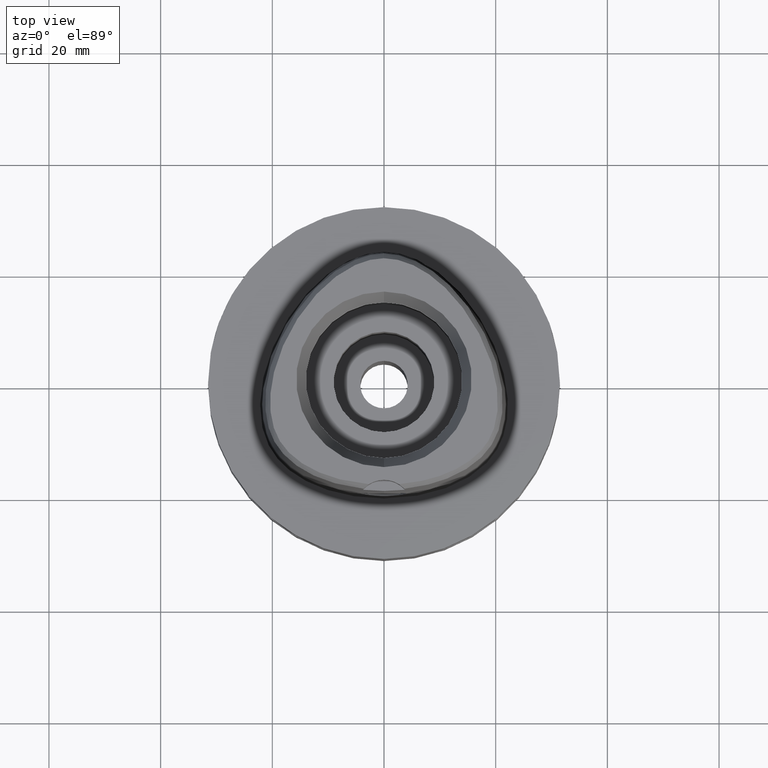
[diagram: clean part render]
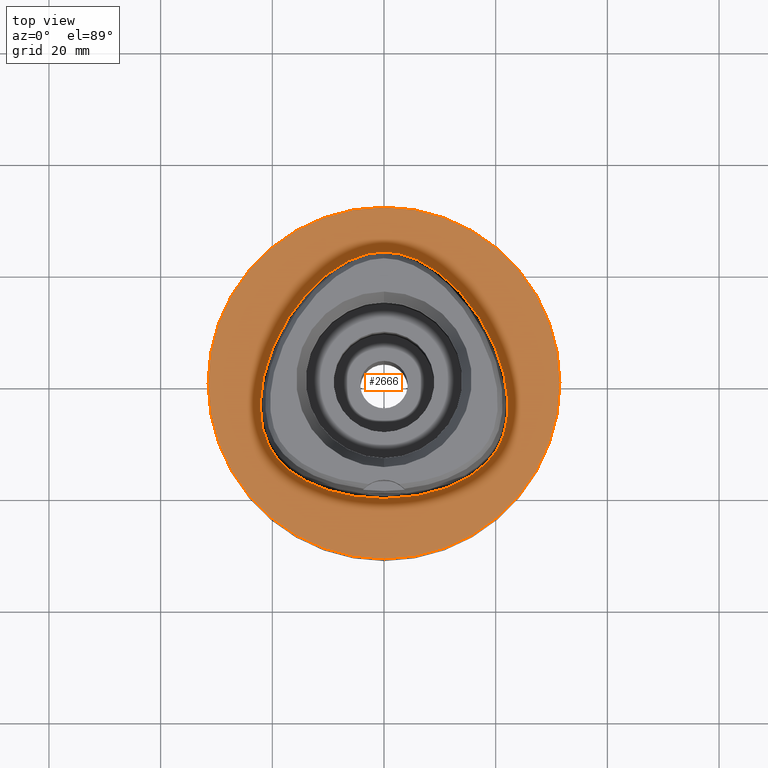
[diagram: same view with one face highlighted and labeled with its STEP entity id]
A machine part, top view. The second image highlights one B-rep face of the part: STEP entity #2666.
In plain terms, the highlighted planar face has unit normal (0, 0, -1).
Its self-contained STEP definition (entity closure, byte-faithful):
#301=CARTESIAN_POINT('',(0.E0,0.E0,0.E0));
#302=DIRECTION('',(0.E0,0.E0,-1.E0));
#303=DIRECTION('',(0.E0,-1.E0,0.E0));
#304=AXIS2_PLACEMENT_3D('',#301,#302,#303);
#309=CARTESIAN_POINT('',(0.E0,0.E0,0.E0));
#310=DIRECTION('',(0.E0,0.E0,-1.E0));
#311=DIRECTION('',(0.E0,1.E0,0.E0));
#312=AXIS2_PLACEMENT_3D('',#309,#310,#311);
#317=CARTESIAN_POINT('',(-1.592319701799E-11,-2.0675E1,1.603532121900E-13));
#318=CARTESIAN_POINT('',(8.668873742777E-1,-2.0675E1,1.603532121900E-13));
#319=CARTESIAN_POINT('',(2.574152259538E0,-2.061244071405E1,
-7.442018476992E-14));
#320=CARTESIAN_POINT('',(5.087455013477E0,-2.033690267620E1,
1.994082840967E-14));
#321=CARTESIAN_POINT('',(7.457378566242E0,-1.989743062754E1,0.E0));
#322=CARTESIAN_POINT('',(9.642522391508E0,-1.931995590345E1,0.E0));
#323=CARTESIAN_POINT('',(1.161491559429E1,-1.863265432641E1,0.E0));
#324=CARTESIAN_POINT('',(1.336672087832E1,-1.786238991750E1,0.E0));
#325=CARTESIAN_POINT('',(1.490398571914E1,-1.703145184235E1,0.E0));
#326=CARTESIAN_POINT('',(1.624050824088E1,-1.615719865621E1,0.E0));
#327=CARTESIAN_POINT('',(1.739430141447E1,-1.525155224486E1,0.E0));
#328=CARTESIAN_POINT('',(1.838387211282E1,-1.432230317713E1,0.E0));
#329=CARTESIAN_POINT('',(1.922788660157E1,-1.337127342318E1,0.E0));
#330=CARTESIAN_POINT('',(1.993663061937E1,-1.240622936985E1,0.E0));
#331=CARTESIAN_POINT('',(2.053360556137E1,-1.140958093014E1,0.E0));
#332=CARTESIAN_POINT('',(2.104227218910E1,-1.034212302010E1,0.E0));
#333=CARTESIAN_POINT('',(2.147146382919E1,-9.173402383785E0,0.E0));
#334=CARTESIAN_POINT('',(2.181286014328E1,-7.892124359501E0,0.E0));
#335=CARTESIAN_POINT('',(2.205603968422E1,-6.484933346756E0,0.E0));
#336=CARTESIAN_POINT('',(2.218639247745E1,-4.938570271174E0,0.E0));
#337=CARTESIAN_POINT('',(2.218557963621E1,-3.242642858041E0,0.E0));
#338=CARTESIAN_POINT('',(2.203226383610E1,-1.390957672398E0,0.E0));
#339=CARTESIAN_POINT('',(2.170398115361E1,6.132663305827E-1,0.E0));
#340=CARTESIAN_POINT('',(2.117984925178E1,2.755704147971E0,0.E0));
#341=CARTESIAN_POINT('',(2.044565882278E1,5.004033268702E0,0.E0));
#342=CARTESIAN_POINT('',(1.949801502885E1,7.310178658560E0,0.E0));
#343=CARTESIAN_POINT('',(1.834998330199E1,9.609039541637E0,0.E0));
#344=CARTESIAN_POINT('',(1.702876166180E1,1.183322818332E1,0.E0));
#345=CARTESIAN_POINT('',(1.557016828976E1,1.392494380147E1,0.E0));
#346=CARTESIAN_POINT('',(1.402234919916E1,1.582933644097E1,0.E0));
#347=CARTESIAN_POINT('',(1.243347396914E1,1.751057958156E1,0.E0));
#348=CARTESIAN_POINT('',(1.084483708065E1,1.895347168572E1,0.E0));
#349=CARTESIAN_POINT('',(9.286681097475E0,2.016051947713E1,0.E0));
#350=CARTESIAN_POINT('',(7.779196835196E0,2.114512601369E1,0.E0));
#351=CARTESIAN_POINT('',(6.332670487596E0,2.192724325982E1,0.E0));
#352=CARTESIAN_POINT('',(4.950443275475E0,2.252842718755E1,0.E0));
#353=CARTESIAN_POINT('',(3.631167033998E0,2.296923938972E1,0.E0));
#354=CARTESIAN_POINT('',(2.369469444584E0,2.326779768316E1,1.957266171852E-14));
#355=CARTESIAN_POINT('',(1.160536399010E0,2.343866167544E1,
-7.304616797287E-14));
#356=CARTESIAN_POINT('',(3.818615545930E-1,2.347499999998E1,
1.573926174577E-13));
#357=CARTESIAN_POINT('',(7.179858813188E-11,2.347499999998E1,
1.573926174577E-13));
#362=CARTESIAN_POINT('',(7.179858813188E-11,2.347499999998E1,
1.573926174577E-13));
#363=CARTESIAN_POINT('',(-3.819532290495E-1,2.347499999999E1,
1.573926174577E-13));
#364=CARTESIAN_POINT('',(-1.160780447523E0,2.343864730641E1,
-7.304616797287E-14));
#365=CARTESIAN_POINT('',(-2.369953767264E0,2.326770791666E1,
1.957266171852E-14));
#366=CARTESIAN_POINT('',(-3.631589259623E0,2.296911820444E1,0.E0));
#367=CARTESIAN_POINT('',(-4.950985767485E0,2.252822362777E1,0.E0));
#368=CARTESIAN_POINT('',(-6.333373412728E0,2.192690768932E1,0.E0));
#369=CARTESIAN_POINT('',(-7.780197061976E0,2.114454237168E1,0.E0));
#370=CARTESIAN_POINT('',(-9.288056959128E0,2.015955330231E1,0.E0));
#371=CARTESIAN_POINT('',(-1.084658659783E1,1.895201942773E1,0.E0));
#372=CARTESIAN_POINT('',(-1.243558606536E1,1.750852378946E1,0.E0));
#373=CARTESIAN_POINT('',(-1.402464368033E1,1.582672846607E1,0.E0));
#374=CARTESIAN_POINT('',(-1.557250360093E1,1.392185467557E1,0.E0));
#375=CARTESIAN_POINT('',(-1.703103523411E1,1.182970272601E1,0.E0));
#376=CARTESIAN_POINT('',(-1.835190412795E1,9.605499945054E0,0.E0));
#377=CARTESIAN_POINT('',(-1.949950722060E1,7.306887774582E0,0.E0));
#378=CARTESIAN_POINT('',(-2.044686608549E1,5.000744348067E0,0.E0));
#379=CARTESIAN_POINT('',(-2.118064923860E1,2.752861994845E0,0.E0));
#380=CARTESIAN_POINT('',(-2.170446524776E1,6.108526549563E-1,0.E0));
#381=CARTESIAN_POINT('',(-2.203249300817E1,-1.392891501107E0,0.E0));
#382=CARTESIAN_POINT('',(-2.218563538620E1,-3.244159797781E0,0.E0));
#383=CARTESIAN_POINT('',(-2.218633791048E1,-4.939730133418E0,0.E0));
#384=CARTESIAN_POINT('',(-2.205591508035E1,-6.485957481269E0,0.E0));
#385=CARTESIAN_POINT('',(-2.181261555455E1,-7.893172717452E0,0.E0));
#386=CARTESIAN_POINT('',(-2.147125095470E1,-9.174235108702E0,0.E0));
#387=CARTESIAN_POINT('',(-2.104115147369E1,-1.034479167362E1,0.E0));
#388=CARTESIAN_POINT('',(-2.053346939184E1,-1.140958790392E1,0.E0));
#389=CARTESIAN_POINT('',(-1.993806959384E1,-1.240395566720E1,0.E0));
#390=CARTESIAN_POINT('',(-1.923022415565E1,-1.336840590421E1,0.E0));
#391=CARTESIAN_POINT('',(-1.838586739182E1,-1.432026304545E1,0.E0));
#392=CARTESIAN_POINT('',(-1.739704982126E1,-1.524917935464E1,0.E0));
#393=CARTESIAN_POINT('',(-1.624333964329E1,-1.615518317255E1,0.E0));
#394=CARTESIAN_POINT('',(-1.490708249602E1,-1.702961176130E1,0.E0));
#395=CARTESIAN_POINT('',(-1.336979342217E1,-1.786091014680E1,0.E0));
#396=CARTESIAN_POINT('',(-1.161753303247E1,-1.863164670070E1,0.E0));
#397=CARTESIAN_POINT('',(-9.644716208904E0,-1.931930628112E1,0.E0));
#398=CARTESIAN_POINT('',(-7.458835343684E0,-1.989712685559E1,0.E0));
#399=CARTESIAN_POINT('',(-5.088244388689E0,-2.033680046696E1,
1.994082840967E-14));
#400=CARTESIAN_POINT('',(-2.574517176324E0,-2.061242363052E1,
-7.442018476992E-14));
#401=CARTESIAN_POINT('',(-8.669969424589E-1,-2.0675E1,1.603532121900E-13));
#402=CARTESIAN_POINT('',(-1.592319701799E-11,-2.0675E1,1.603532121900E-13));
#1782=VERTEX_POINT('',#362);
#1783=VERTEX_POINT('',#402);
#1788=CARTESIAN_POINT('',(0.E0,-3.15E1,0.E0));
#1789=CARTESIAN_POINT('',(0.E0,3.15E1,0.E0));
#1790=VERTEX_POINT('',#1788);
#1791=VERTEX_POINT('',#1789);
#2650=CARTESIAN_POINT('',(0.E0,0.E0,0.E0));
#2651=DIRECTION('',(0.E0,0.E0,-1.E0));
#2652=DIRECTION('',(0.E0,-1.E0,0.E0));
#2653=AXIS2_PLACEMENT_3D('',#2650,#2651,#2652);
#2654=PLANE('',#2653);
#2656=ORIENTED_EDGE('',*,*,#2655,.T.);
#2658=ORIENTED_EDGE('',*,*,#2657,.T.);
#2659=EDGE_LOOP('',(#2656,#2658));
#2660=FACE_OUTER_BOUND('',#2659,.F.);
#2662=ORIENTED_EDGE('',*,*,#2661,.T.);
#2663=ORIENTED_EDGE('',*,*,#2633,.T.);
#2664=EDGE_LOOP('',(#2662,#2663));
#2665=FACE_BOUND('',#2664,.F.);
#305=CIRCLE('',#304,3.15E1);
#313=CIRCLE('',#312,3.15E1);
#358=B_SPLINE_CURVE_WITH_KNOTS('',3,(#317,#318,#319,#320,#321,#322,#323,#324,
#325,#326,#327,#328,#329,#330,#331,#332,#333,#334,#335,#336,#337,#338,#339,#340,
#341,#342,#343,#344,#345,#346,#347,#348,#349,#350,#351,#352,#353,#354,#355,#356,
#357),.UNSPECIFIED.,.F.,.F.,(4,1,1,1,1,1,1,1,1,1,1,1,1,1,1,1,1,1,1,1,1,1,1,1,1,
1,1,1,1,1,1,1,1,1,1,1,1,1,4),(0.E0,2.631578947368E-2,5.263157894737E-2,
7.894736842105E-2,1.052631578947E-1,1.315789473684E-1,1.578947368421E-1,
1.842105263158E-1,2.105263157895E-1,2.368421052632E-1,2.631578947368E-1,
2.894736842105E-1,3.157894736842E-1,3.421052631579E-1,3.684210526316E-1,
3.947368421053E-1,4.210526315789E-1,4.473684210526E-1,4.736842105263E-1,5.E-1,
5.263157894737E-1,5.526315789474E-1,5.789473684211E-1,6.052631578947E-1,
6.315789473684E-1,6.578947368421E-1,6.842105263158E-1,7.105263157895E-1,
7.368421052632E-1,7.631578947368E-1,7.894736842105E-1,8.157894736842E-1,
8.421052631579E-1,8.684210526316E-1,8.947368421053E-1,9.210526315789E-1,
9.473684210526E-1,9.736842105263E-1,1.E0),.UNSPECIFIED.);
#403=B_SPLINE_CURVE_WITH_KNOTS('',3,(#362,#363,#364,#365,#366,#367,#368,#369,
#370,#371,#372,#373,#374,#375,#376,#377,#378,#379,#380,#381,#382,#383,#384,#385,
#386,#387,#388,#389,#390,#391,#392,#393,#394,#395,#396,#397,#398,#399,#400,#401,
#402),.UNSPECIFIED.,.F.,.F.,(4,1,1,1,1,1,1,1,1,1,1,1,1,1,1,1,1,1,1,1,1,1,1,1,1,
1,1,1,1,1,1,1,1,1,1,1,1,1,4),(0.E0,2.631578947368E-2,5.263157894737E-2,
7.894736842105E-2,1.052631578947E-1,1.315789473684E-1,1.578947368421E-1,
1.842105263158E-1,2.105263157895E-1,2.368421052632E-1,2.631578947368E-1,
2.894736842105E-1,3.157894736842E-1,3.421052631579E-1,3.684210526316E-1,
3.947368421053E-1,4.210526315789E-1,4.473684210526E-1,4.736842105263E-1,5.E-1,
5.263157894737E-1,5.526315789474E-1,5.789473684211E-1,6.052631578947E-1,
6.315789473684E-1,6.578947368421E-1,6.842105263158E-1,7.105263157895E-1,
7.368421052632E-1,7.631578947368E-1,7.894736842105E-1,8.157894736842E-1,
8.421052631579E-1,8.684210526316E-1,8.947368421053E-1,9.210526315789E-1,
9.473684210526E-1,9.736842105263E-1,1.E0),.UNSPECIFIED.);
#2633=EDGE_CURVE('',#1782,#1783,#403,.T.);
#2655=EDGE_CURVE('',#1790,#1791,#305,.T.);
#2657=EDGE_CURVE('',#1791,#1790,#313,.T.);
#2661=EDGE_CURVE('',#1783,#1782,#358,.T.);
#2666=ADVANCED_FACE('',(#2660,#2665),#2654,.F.);